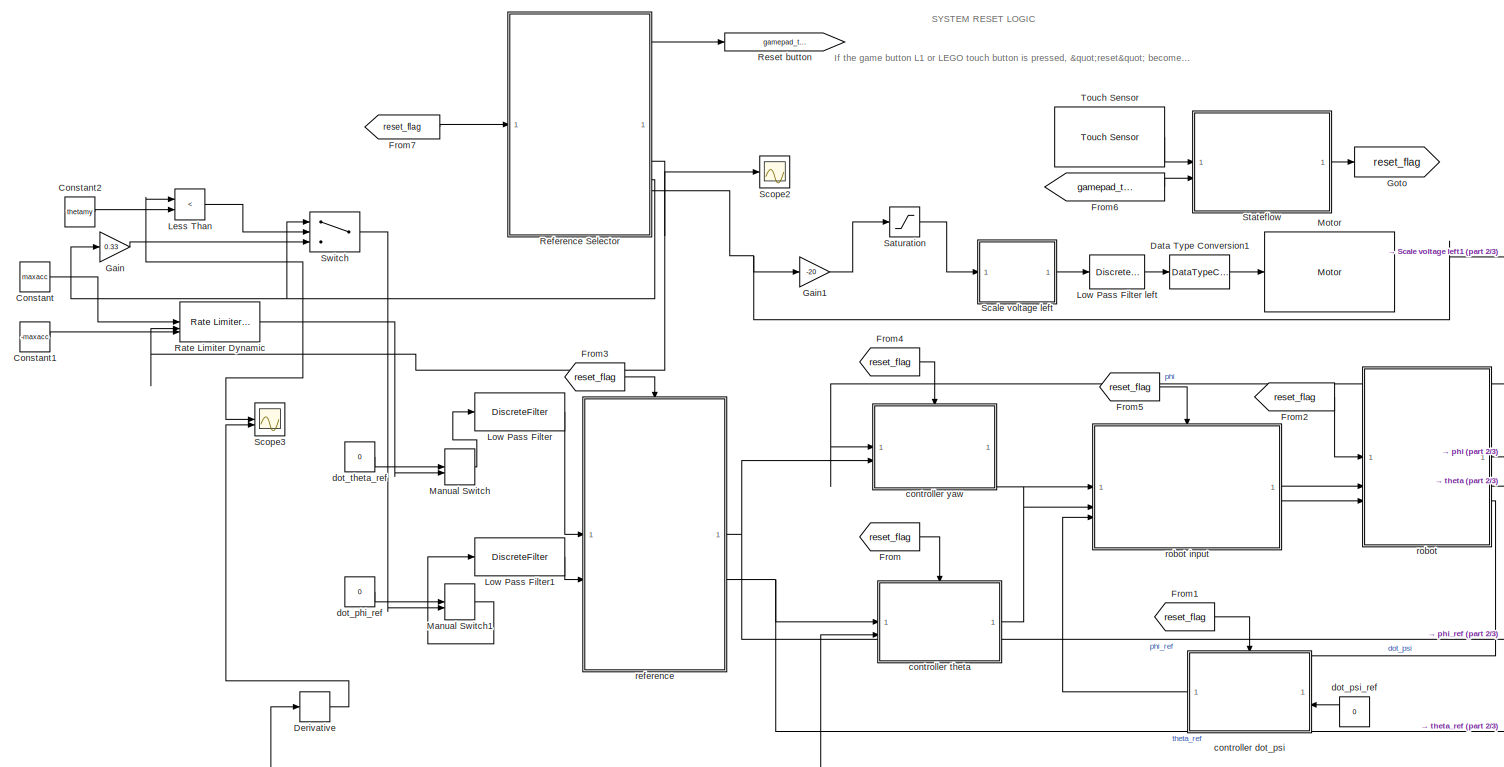
[diagram: root canvas - part 1/3, most of the canvas]
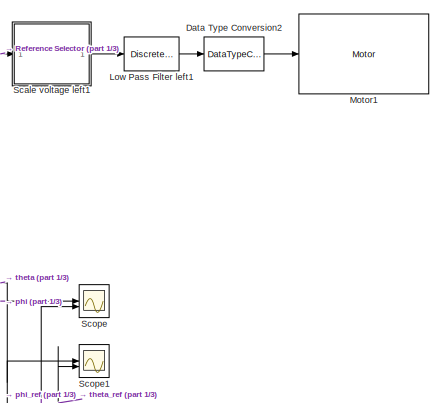
[diagram: root canvas - part 2/3, middle right region]
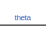
[diagram: root canvas - part 3/3, bottom center region]
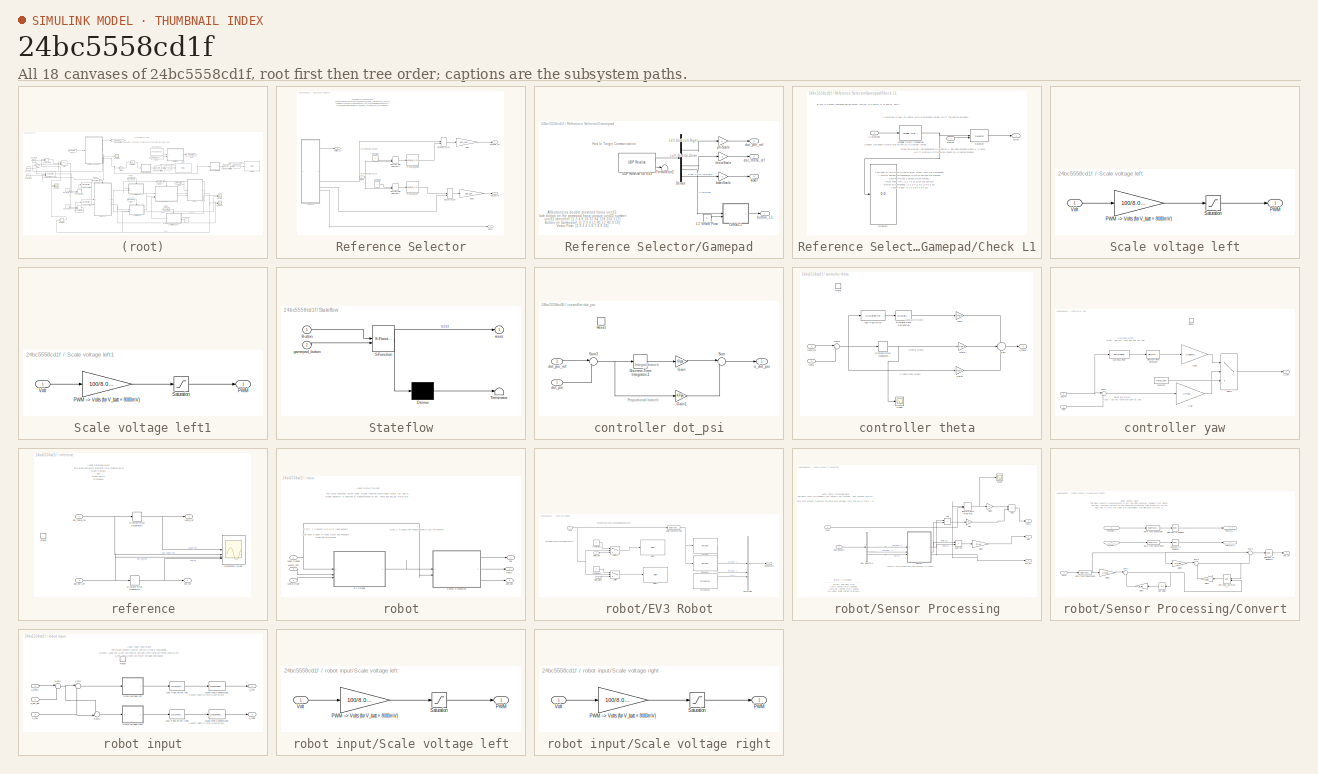
[diagram: thumbnail index - all 18 canvases of the model, root first then tree order]
MODEL slx_24bc5558cd1f
KIND model
CONFIG AbsTol = auto
CONFIG EnableMultiTasking = on
CONFIG FixedStep = auto
CONFIG InitFcn = lego_drive_openloop_InitData.mdl = get_param(bdroot,'Name');\nlego_drive_openloop_InitData.cs = getActiveConfigSet(lego_drive_openloop_InitData.mdl);\n\n
CONFIG MaxStep = auto
CONFIG MinStep = auto
CONFIG RelTol = 1e-3
CONFIG SampleTimeConstraint = Unconstrained
CONFIG SolverName = ode45
CONFIG StartTime = 0.0
CONFIG StopTime = 10.0
BLOCK [Constant] Constant
  Value = maxacc
BLOCK [Constant] Constant1
  Value = -maxacc
BLOCK [Constant] Constant2
  Value = thetamy
BLOCK [DataTypeConversion] Data Type Conversion1
  OutDataTypeStr = int8
  RndMeth = Floor
  SaturateOnIntegerOverflow = off
BLOCK [DataTypeConversion] Data Type Conversion2
  OutDataTypeStr = int8
  RndMeth = Floor
  SaturateOnIntegerOverflow = off
BLOCK [Derivative] Derivative
BLOCK [From] From
  GotoTag = reset_flag
BLOCK [From] From1
  GotoTag = reset_flag
BLOCK [From] From2
  GotoTag = reset_flag
BLOCK [From] From3
  GotoTag = reset_flag
BLOCK [From] From4
  GotoTag = reset_flag
BLOCK [From] From5
  GotoTag = reset_flag
BLOCK [From] From6
  GotoTag = gamepad_touch
  TagVisibility = global
BLOCK [From] From7
  GotoTag = reset_flag
BLOCK [Gain] Gain
  Gain = 0.33
BLOCK [Gain] Gain1
  Gain = -20
BLOCK [Goto] Goto
  GotoTag = reset_flag
BLOCK [RelationalOperator] Less Than
  InputSameDT = off
  Operator = <
  OutDataTypeStr = boolean
  RndMeth = Simplest
BLOCK [DiscreteFilter] Low Pass Filter
  Denominator = [1 -0.8]
  InputPortMap = u0
  Numerator = [.2]
  SampleTime = Ts
BLOCK [DiscreteFilter] Low Pass Filter left
  Denominator = [1 -0.8]
  InputPortMap = u0
  Numerator = [.2]
BLOCK [DiscreteFilter] Low Pass Filter left1
  Denominator = [1 -0.8]
  InputPortMap = u0
  Numerator = [.2]
BLOCK [DiscreteFilter] Low Pass Filter1
  Denominator = [1 -0.8]
  InputPortMap = u0
  Numerator = [.2]
  SampleTime = Ts
BLOCK [ManualSwitch] Manual Switch
  CurrentSetting = 0
BLOCK [ManualSwitch] Manual Switch1
  CurrentSetting = 0
BLOCK [Reference] Motor  REF=legoev3lib/Motor
  SourceBlock = legoev3lib/Motor
  SourceType = LEGO MINDSTORMS EV3 Motor
BLOCK [Reference] Motor1  REF=legoev3lib/Motor
  SourceBlock = legoev3lib/Motor
  SourceType = LEGO MINDSTORMS EV3 Motor
BLOCK [Reference] Rate Limiter Dynamic  REF=simulink/Discontinuities/Rate Limiter
Dynamic
  SourceBlock = simulink/Discontinuities/Rate Limiter\nDynamic
  SourceType = Rate Limiter Dynamic
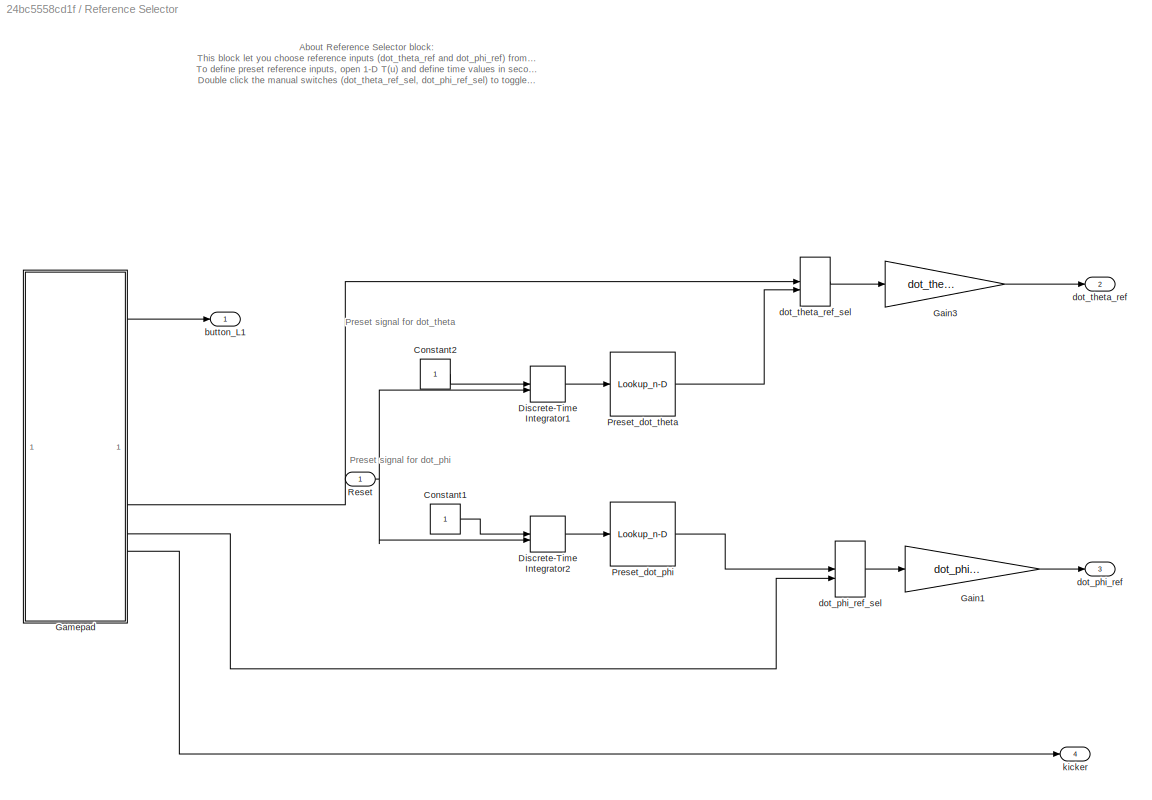
BLOCK [SubSystem] Reference Selector
BLOCK [Constant] Reference Selector/Constant1
BLOCK [Constant] Reference Selector/Constant2
BLOCK [DiscreteIntegrator] Reference Selector/Discrete-Time Integrator1
  ExternalReset = level
  ICPrevOutput = DiscIntNeverNeededParam
  ICPrevScaledInput = DiscIntNeverNeededParam
  NameLocation = top
  SampleTime = Ts
BLOCK [DiscreteIntegrator] Reference Selector/Discrete-Time Integrator2
  ExternalReset = level
  ICPrevOutput = DiscIntNeverNeededParam
  ICPrevScaledInput = DiscIntNeverNeededParam
  NameLocation = top
  SampleTime = Ts
BLOCK [Gain] Reference Selector/Gain1
  Gain = dot_phi_ref
BLOCK [Gain] Reference Selector/Gain3
  Gain = dot_theta_ref
BLOCK [SubSystem] Reference Selector/Gamepad
  Permissions = ReadOnly
BLOCK [SubSystem] Reference Selector/Gamepad/Check L1
BLOCK [Inport] Reference Selector/Gamepad/Check L1/AllButtons 
BLOCK [Inport] Reference Selector/Gamepad/Check L1/Button
  Port = 2
BLOCK [Display] Reference Selector/Gamepad/Check L1/Display1
  Decimation = 1
BLOCK [Reference] Reference Selector/Gamepad/Check L1/Integer to Bit Converter  REF=simulink/Logic and Bit
Operations/Integer to Bit
Converter
  LibrarySourceBlock = commutil2/Integer to Bit\nConverter
  SourceBlock = simulink/Logic and Bit\nOperations/Integer to Bit\nConverter
  SourceType = Integer to Bit Converter
BLOCK [Selector] Reference Selector/Gamepad/Check L1/Selector
  IndexOptions = Index vector (port)
  Indices = [1]
  InputPortWidth = 10
  OutputSizes = 1
BLOCK [Outport] Reference Selector/Gamepad/Check L1/on-off
  VectorParamsAs1DForOutWhenUnconnected = off
BLOCK [Demux] Reference Selector/Gamepad/Demux
BLOCK [Constant] Reference Selector/Gamepad/L1 Vector Posn
  Value = 5
BLOCK [Terminator] Reference Selector/Gamepad/Terminator2
BLOCK [Reference] Reference Selector/Gamepad/UDP Receive for EV3  REF=shared_linuxserviceslib/UDP Receive
  SourceBlock = shared_linuxserviceslib/UDP Receive
  SourceType = UDP Receive
BLOCK [Outport] Reference Selector/Gamepad/button_L1
  VectorParamsAs1DForOutWhenUnconnected = off
BLOCK [Outport] Reference Selector/Gamepad/dot_phi_ref
  Port = 3
  VectorParamsAs1DForOutWhenUnconnected = off
BLOCK [Outport] Reference Selector/Gamepad/dot_theta_ref
  Port = 2
  VectorParamsAs1DForOutWhenUnconnected = off
BLOCK [Outport] Reference Selector/Gamepad/kicker
  Port = 4
  VectorParamsAs1DForOutWhenUnconnected = off
BLOCK [Gain] Reference Selector/Gamepad/kickerScale
  Gain = -1
BLOCK [Gain] Reference Selector/Gamepad/phiScale
BLOCK [Gain] Reference Selector/Gamepad/thetaScale
  Gain = -1
BLOCK [Lookup_n-D] Reference Selector/Preset_dot_phi
  BreakpointsForDimension1 = [0 1 2 3 4 5 6 9.1 10.8 11 12 12.1 12.2 13 14 15 16 17 18 19 20]
  InputPortMap = u0
  InternalRulePriority = Speed
  InterpMethod = Flat
  NumberOfTableDimensions = 1
  RndMeth = Ceiling
  Table = [0;0;0;0;0;0;0;8;0;0;0;0;0;0;0;0;0;0;0;0;0]
BLOCK [Lookup_n-D] Reference Selector/Preset_dot_theta
  BreakpointsForDimension1 = [0;1;2;2.5;2.6;2.7;3.7;4.8;5.9;7;8;9;10;11;11.5;12.4;13;14;15;16;17;18;19;20;21;22]
  InputPortMap = u0
  InternalRulePriority = Speed
  InterpMethod = Cubic spline
  NumberOfTableDimensions = 1
  RndMeth = Ceiling
  Table = [0;0;0;0;0;0;0.5;1.5;2.5;2.7;2.5;1;0;0;0.5;1.3;2;2.3;2.5;2.1;1.5;0.5;0;0;0;0]
BLOCK [Inport] Reference Selector/Reset
BLOCK [Outport] Reference Selector/button_L1
BLOCK [Outport] Reference Selector/dot_phi_ref
  Port = 3
BLOCK [ManualSwitch] Reference Selector/dot_phi_ref_sel
  CurrentSetting = 0
BLOCK [Outport] Reference Selector/dot_theta_ref
  Port = 2
BLOCK [ManualSwitch] Reference Selector/dot_theta_ref_sel
BLOCK [Outport] Reference Selector/kicker
  Port = 4
BLOCK [Goto] Reset button
  GotoTag = gamepad_touch
  TagVisibility = global
BLOCK [Saturate] Saturation
  LowerLimit = -20
  UpperLimit = 2
BLOCK [SubSystem] Scale voltage left
BLOCK [Outport] Scale voltage left/PWM
  VectorParamsAs1DForOutWhenUnconnected = off
BLOCK [Gain] Scale voltage left/PWM --> Volts (for V_batt = 8000mV)
  Gain = 100/8.087
BLOCK [Saturate] Scale voltage left/Saturation
  LowerLimit = -100
  UpperLimit = 100
BLOCK [Inport] Scale voltage left/Volt
BLOCK [SubSystem] Scale voltage left1
BLOCK [Outport] Scale voltage left1/PWM
  VectorParamsAs1DForOutWhenUnconnected = off
BLOCK [Gain] Scale voltage left1/PWM --> Volts (for V_batt = 8000mV)
  Gain = 100/8.087
BLOCK [Saturate] Scale voltage left1/Saturation
  LowerLimit = -100
  UpperLimit = 100
BLOCK [Inport] Scale voltage left1/Volt
BLOCK [Scope] Scope
  Floating = off
  NumInputPorts = 2
  ScopeSpecificationString = Simulink.scopes.TimeScopeBlockCfg('CurrentConfiguration', extmgr.ConfigurationSet(extmgr.Configuration('Core','General UI',true),extmgr.Configuration('Core','Source UI',true),extmgr.Configuration('Sources','WiredSimulink',true,'DataLoggingVariableName','ScopeData1'),extmgr.Configuration('Visuals','Time Domain',true,'SerializedDisplays',{struct('MinYLimReal','-0.13966','MaxYLimReal','2.25203','YLab...<+1427ch>
BLOCK [Scope] Scope1
  Floating = off
  NumInputPorts = 2
  ScopeSpecificationString = Simulink.scopes.TimeScopeBlockCfg('CurrentConfiguration', extmgr.ConfigurationSet(extmgr.Configuration('Core','General UI',true),extmgr.Configuration('Core','Source UI',true),extmgr.Configuration('Sources','WiredSimulink',true,'DataLoggingVariableName','ScopeData2'),extmgr.Configuration('Visuals','Time Domain',true,'SerializedDisplays',{struct('MinYLimReal','-25.1274','MaxYLimReal','144.99862','YL...<+1582ch>
BLOCK [Scope] Scope2
  Floating = off
  NumInputPorts = 1
  ScopeSpecificationString = Simulink.scopes.TimeScopeBlockCfg('CurrentConfiguration', extmgr.ConfigurationSet(extmgr.Configuration('Core','General UI',true),extmgr.Configuration('Core','Source UI',true),extmgr.Configuration('Sources','WiredSimulink',true,'DataLoggingVariableName','ScopeData1'),extmgr.Configuration('Visuals','Time Domain',true,'SerializedDisplays',{struct('MinYLimReal','-1.125','MaxYLimReal','10.125','YLabelR...<+1397ch>
BLOCK [Scope] Scope3
  Floating = off
  NumInputPorts = 2
  ScopeSpecificationString = Simulink.scopes.TimeScopeBlockCfg('CurrentConfiguration', extmgr.ConfigurationSet(extmgr.Configuration('Core','General UI',true),extmgr.Configuration('Core','Source UI',true),extmgr.Configuration('Sources','WiredSimulink',true,'DataLoggingVariableName','ScopeData2'),extmgr.Configuration('Visuals','Time Domain',true,'SerializedDisplays',{struct('MinYLimReal','-0.00001','MaxYLimReal','0.000001','YLa...<+1396ch>
BLOCK [SubSystem] Stateflow
  CopyFcn = % delete the link so that this is editable\nset_param(gcb, 'LinkStatus', 'none');
  ErrorFcn = Stateflow.Translate.translate
  Permissions = ReadOnly
  PermitHierarchicalResolution = ExplicitOnly
  SFBlockType = Chart
  SystemSampleTime = Ts
  TreatAsAtomicUnit = on
BLOCK [Demux] Stateflow/ Demux 
  Outputs = 1
BLOCK [S-Function] Stateflow/ SFunction 
  EnableBusSupport = on
  FunctionName = sf_sfun
  PortCounts = [2 2]
  SFcnIsStateOwnerBlock = off
  SFunctionDeploymentMode = off
  Tag = Stateflow S-Function 1
BLOCK [Terminator] Stateflow/ Terminator 
BLOCK [Inport] Stateflow/Button
BLOCK [Inport] Stateflow/gamepad_button
  Port = 2
BLOCK [Outport] Stateflow/reset
  VectorParamsAs1DForOutWhenUnconnected = off
BLOCK [Switch] Switch
  Criteria = u2 > Threshold
  InputSameDT = off
  SaturateOnIntegerOverflow = off
BLOCK [Reference] Touch Sensor  REF=legoev3lib/Touch Sensor
  SourceBlock = legoev3lib/Touch Sensor
  SourceType = LEGO MINDSTORMS EV3 Touch Sensor
BLOCK [SubSystem] controller dot_psi
BLOCK [DiscreteIntegrator] controller dot_psi/Discrete-Time Integrator-1
  ICPrevOutput = DiscIntNeverNeededParam
  ICPrevScaledInput = DiscIntNeverNeededParam
  NameLocation = top
  SampleTime = Ts
BLOCK [Gain] controller dot_psi/Gain
  Gain = KIpsi
BLOCK [Gain] controller dot_psi/Gain1
  Gain = KPpsi
BLOCK [ResetPort] controller dot_psi/Reset
  DisableCoverage = on
BLOCK [Sum] controller dot_psi/Sum
  Inputs = |++
  OutDataTypeStr = Inherit: Same as first input
BLOCK [Sum] controller dot_psi/Sum3
  Inputs = |+-
  OutDataTypeStr = Inherit: Same as first input
BLOCK [Inport] controller dot_psi/dot_psi
BLOCK [Inport] controller dot_psi/dot_psi_ref
  Port = 2
BLOCK [Outport] controller dot_psi/u_dot_psi
  VectorParamsAs1DForOutWhenUnconnected = off
BLOCK [SubSystem] controller theta
BLOCK [Reference] controller theta/Discrete-Time Derivative  REF=simulink/Discrete/Discrete Derivative
  SourceBlock = simulink/Discrete/Discrete Derivative
  SourceType = Discrete Derivative
BLOCK [DiscreteIntegrator] controller theta/Discrete-Time Integrator
  ICPrevOutput = DiscIntNeverNeededParam
  ICPrevScaledInput = DiscIntNeverNeededParam
  NameLocation = top
  SampleTime = Ts
BLOCK [Gain] controller theta/Gain
  Gain = KDtheta
BLOCK [Gain] controller theta/Gain1
  Gain = KItheta
BLOCK [Gain] controller theta/Gain2
  Gain = KPtheta
BLOCK [DiscreteFilter] controller theta/Low Pass Filter
  Denominator = [1 -0.8]
  InputPortMap = u0
  Numerator = [.2]
  SampleTime = Ts
BLOCK [ResetPort] controller theta/Reset
  DisableCoverage = on
BLOCK [Scope] controller theta/Scope
  Floating = off
  NumInputPorts = 1
  ScopeSpecificationString = Simulink.scopes.TimeScopeBlockCfg('CurrentConfiguration', extmgr.ConfigurationSet(extmgr.Configuration('Core','General UI',true),extmgr.Configuration('Core','Source UI',true),extmgr.Configuration('Sources','WiredSimulink',true,'DataLoggingVariableName','ScopeData3'),extmgr.Configuration('Visuals','Time Domain',true),extmgr.Configuration('Tools','Plot Navigation',true),extmgr.Configuration('Tools',...<+40ch>
BLOCK [Sum] controller theta/Sum
  Inputs = +|+|+
  OutDataTypeStr = Inherit: Same as first input
BLOCK [Sum] controller theta/Sum3
  Inputs = |+-
  OutDataTypeStr = Inherit: Same as first input
BLOCK [Inport] controller theta/theta
  Port = 2
BLOCK [Inport] controller theta/theta_ref
BLOCK [Outport] controller theta/u_theta
  VectorParamsAs1DForOutWhenUnconnected = off
BLOCK [SubSystem] controller yaw
BLOCK [Constant] controller yaw/Constant
  Value = thres_yaw
BLOCK [Reference] controller yaw/Discrete-Time Derivative  REF=simulink/Discrete/Discrete Derivative
  SourceBlock = simulink/Discrete/Discrete Derivative
  SourceType = Discrete Derivative
BLOCK [Gain] controller yaw/Gain
  Gain = KPphi
BLOCK [Gain] controller yaw/Gain1
  Gain = Kopenloop
BLOCK [DiscreteFilter] controller yaw/Low Pass Filter
  Denominator = [1 -0.8]
  InputPortMap = u0
  Numerator = [.2]
  SampleTime = Ts
BLOCK [ResetPort] controller yaw/Reset
  DisableCoverage = on
BLOCK [Sum] controller yaw/Sum3
  Inputs = |+-
BLOCK [Switch] controller yaw/Switch
  Criteria = u2 > Threshold
  InputSameDT = off
  SaturateOnIntegerOverflow = off
BLOCK [Inport] controller yaw/phi
BLOCK [Inport] controller yaw/phi_ref
  Port = 2
BLOCK [Outport] controller yaw/u_yaw
  VectorParamsAs1DForOutWhenUnconnected = off
BLOCK [Constant] dot_phi_ref
  Value = 0
BLOCK [Constant] dot_psi_ref
  Value = 0
  VectorParams1D = off
BLOCK [Constant] dot_theta_ref
  Value = 0
BLOCK [SubSystem] reference
  Permissions = ReadOnly
BLOCK [DiscreteIntegrator] reference/Discrete-Time Integrator1
  ICPrevOutput = DiscIntNeverNeededParam
  ICPrevScaledInput = DiscIntNeverNeededParam
  NameLocation = top
  SampleTime = Ts
BLOCK [DiscreteIntegrator] reference/Discrete-Time Integrator2
  ICPrevOutput = DiscIntNeverNeededParam
  ICPrevScaledInput = DiscIntNeverNeededParam
  NameLocation = top
  SampleTime = Ts
BLOCK [Scope] reference/Reference Values
  Floating = off
  NumInputPorts = 4
  ScopeSpecificationString = Simulink.scopes.TimeScopeBlockCfg('CurrentConfiguration', extmgr.ConfigurationSet(extmgr.Configuration('Core','General UI',true),extmgr.Configuration('Core','Source UI',true),extmgr.Configuration('Sources','WiredSimulink',true,'DataLoggingVariableName','ScopeData1','DataLoggingSaveFormat','StructureWithTime','DataLoggingDecimation','1','DataLoggingLimitDataPoints',true),extmgr.Configuration('Visua...<+3596ch>
BLOCK [ResetPort] reference/Reset
  DisableCoverage = on
BLOCK [Inport] reference/dot_phi_ref
  Port = 2
BLOCK [Inport] reference/dot_theta_ref
BLOCK [Outport] reference/phi_ref  
  VectorParamsAs1DForOutWhenUnconnected = off
BLOCK [Outport] reference/theta_ref
  Port = 2
  VectorParamsAs1DForOutWhenUnconnected = off
BLOCK [SubSystem] robot
  VariantControl = DoSim
BLOCK [SubSystem] robot input
  Permissions = ReadOnly
BLOCK [DataTypeConversion] robot input/Data Type Conversion1
  OutDataTypeStr = int8
  RndMeth = Floor
  SaturateOnIntegerOverflow = off
BLOCK [DataTypeConversion] robot input/Data Type Conversion2
  OutDataTypeStr = int8
  RndMeth = Floor
  SaturateOnIntegerOverflow = off
BLOCK [DiscreteFilter] robot input/Low Pass Filter left
  Denominator = [1 -0.8]
  InputPortMap = u0
  Numerator = [.2]
BLOCK [DiscreteFilter] robot input/Low Pass Filter right
  Denominator = [1 -0.8]
  InputPortMap = u0
  Numerator = [.2]
BLOCK [ResetPort] robot input/Reset
  DisableCoverage = on
BLOCK [SubSystem] robot input/Scale voltage left
BLOCK [Outport] robot input/Scale voltage left/PWM
  VectorParamsAs1DForOutWhenUnconnected = off
BLOCK [Gain] robot input/Scale voltage left/PWM --> Volts (for V_batt = 8000mV)
  Gain = 100/8.087
BLOCK [Saturate] robot input/Scale voltage left/Saturation
  LowerLimit = -100
  UpperLimit = 100
BLOCK [Inport] robot input/Scale voltage left/Volt
BLOCK [SubSystem] robot input/Scale voltage right
BLOCK [Outport] robot input/Scale voltage right/PWM
  VectorParamsAs1DForOutWhenUnconnected = off
BLOCK [Gain] robot input/Scale voltage right/PWM --> Volts (for V_batt = 8000mV)
  Gain = 100/8.087
BLOCK [Saturate] robot input/Scale voltage right/Saturation
  LowerLimit = -100
  UpperLimit = 100
BLOCK [Inport] robot input/Scale voltage right/Volt
BLOCK [Sum] robot input/Sum1
  Inputs = |++
BLOCK [Sum] robot input/Sum2
  Inputs = +-|
BLOCK [Sum] robot input/Sum4
  Inputs = |++
BLOCK [Inport] robot input/u_dot_psi
  Port = 3
BLOCK [Outport] robot input/u_left
  VectorParamsAs1DForOutWhenUnconnected = off
BLOCK [Outport] robot input/u_right
  Port = 2
  VectorParamsAs1DForOutWhenUnconnected = off
BLOCK [Inport] robot input/u_theta
  Port = 2
BLOCK [Inport] robot input/u_yaw
BLOCK [SubSystem] robot/EV3 Robot
BLOCK [BusCreator] robot/EV3 Robot/Bus Creator
  DisplayOption = bar
  InheritFromInputs = on
  Inputs = 3
BLOCK [DataTypeConversion] robot/EV3 Robot/Data Type Conversion
  OutDataTypeStr = int8
  RndMeth = Floor
  SaturateOnIntegerOverflow = off
BLOCK [Reference] robot/EV3 Robot/Encoder  REF=legoev3lib/Encoder
  SourceBlock = legoev3lib/Encoder
  SourceType = LEGO MINDSTORMS EV3 Encoder
BLOCK [Reference] robot/EV3 Robot/Encoder1  REF=legoev3lib/Encoder
  SourceBlock = legoev3lib/Encoder
  SourceType = LEGO MINDSTORMS EV3 Encoder
BLOCK [Reference] robot/EV3 Robot/Gyro Sensor  REF=legoev3lib/Gyro Sensor
  SourceBlock = legoev3lib/Gyro Sensor
  SourceType = LEGO MINDSTORMS EV3 Gyro Sensor
BLOCK [Reference] robot/EV3 Robot/Motor  REF=legoev3lib/Motor
  SourceBlock = legoev3lib/Motor
  SourceType = LEGO MINDSTORMS EV3 Motor
BLOCK [Inport] robot/EV3 Robot/Motor Left
  Port = 2
BLOCK [Inport] robot/EV3 Robot/Motor Right
  Port = 3
BLOCK [Reference] robot/EV3 Robot/Motor1  REF=legoev3lib/Motor
  SourceBlock = legoev3lib/Motor
  SourceType = LEGO MINDSTORMS EV3 Motor
BLOCK [Outport] robot/EV3 Robot/Raw Sensors
  VectorParamsAs1DForOutWhenUnconnected = off
BLOCK [Switch] robot/EV3 Robot/Switch
  Criteria = u2 ~= 0
  InputSameDT = off
  SaturateOnIntegerOverflow = off
BLOCK [Switch] robot/EV3 Robot/Switch1
  Criteria = u2 ~= 0
  InputSameDT = off
  SaturateOnIntegerOverflow = off
  Threshold = 1
BLOCK [Inport] robot/EV3 Robot/reset
BLOCK [Constant] robot/EV3 Robot/reset value
  Value = 0
BLOCK [Constant] robot/EV3 Robot/reset value1
  Value = 0
BLOCK [Inport] robot/Motor_left
  Port = 2
BLOCK [Inport] robot/Motor_right
  Port = 3
BLOCK [SubSystem] robot/Sensor Processing
  TreatAsAtomicUnit = on
BLOCK [Sum] robot/Sensor Processing/Add
  IconShape = rectangular
BLOCK [Sum] robot/Sensor Processing/Add1
  IconShape = rectangular
BLOCK [BusSelector] robot/Sensor Processing/Bus Selector1
  OutputSignals = encoder_l,encoder_r,gyro
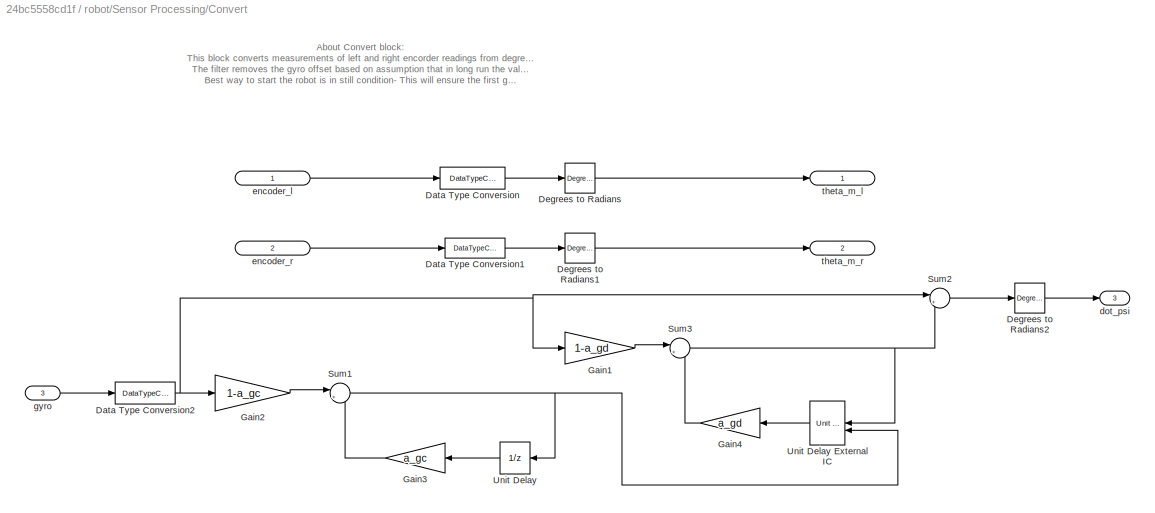
BLOCK [SubSystem] robot/Sensor Processing/Convert
  Permissions = ReadOnly
BLOCK [DataTypeConversion] robot/Sensor Processing/Convert/Data Type Conversion
  RndMeth = Floor
  SaturateOnIntegerOverflow = off
BLOCK [DataTypeConversion] robot/Sensor Processing/Convert/Data Type Conversion1
  RndMeth = Floor
  SaturateOnIntegerOverflow = off
BLOCK [DataTypeConversion] robot/Sensor Processing/Convert/Data Type Conversion2
  RndMeth = Floor
  SaturateOnIntegerOverflow = off
BLOCK [Reference] robot/Sensor Processing/Convert/Degrees to Radians  REF=simulink_extras/Transformations/Degrees to
Radians
  SourceBlock = simulink_extras/Transformations/Degrees to\nRadians
  SourceType = DegreesToRadians
BLOCK [Reference] robot/Sensor Processing/Convert/Degrees to Radians1  REF=simulink_extras/Transformations/Degrees to
Radians
  SourceBlock = simulink_extras/Transformations/Degrees to\nRadians
  SourceType = DegreesToRadians
BLOCK [Reference] robot/Sensor Processing/Convert/Degrees to Radians2  REF=simulink_extras/Transformations/Degrees to
Radians
  SourceBlock = simulink_extras/Transformations/Degrees to\nRadians
  SourceType = DegreesToRadians
BLOCK [Gain] robot/Sensor Processing/Convert/Gain1
  Gain = 1-a_gd
  OutDataTypeStr = Inherit: Same as input
  ParamDataTypeStr = Inherit: Same as input
BLOCK [Gain] robot/Sensor Processing/Convert/Gain2
  Gain = 1-a_gc
  OutDataTypeStr = Inherit: Same as input
  ParamDataTypeStr = Inherit: Same as input
BLOCK [Gain] robot/Sensor Processing/Convert/Gain3
  Gain = a_gc
  OutDataTypeStr = Inherit: Same as input
  ParamDataTypeStr = Inherit: Same as input
BLOCK [Gain] robot/Sensor Processing/Convert/Gain4
  Gain = a_gd
  OutDataTypeStr = Inherit: Same as input
  ParamDataTypeStr = Inherit: Same as input
BLOCK [Sum] robot/Sensor Processing/Convert/Sum1
  Inputs = |++
  OutDataTypeStr = Inherit: Same as first input
BLOCK [Sum] robot/Sensor Processing/Convert/Sum2
  Inputs = |+-
  OutDataTypeStr = Inherit: Same as first input
BLOCK [Sum] robot/Sensor Processing/Convert/Sum3
  Inputs = |++
  OutDataTypeStr = Inherit: Same as first input
BLOCK [UnitDelay] robot/Sensor Processing/Convert/Unit Delay
  HasFrameUpgradeWarning = on
  SampleTime = -1
BLOCK [Reference] robot/Sensor Processing/Convert/Unit Delay External IC  REF=simulink_need_slupdate/Unit Delay
External IC
  SourceBlock = simulink_need_slupdate/Unit Delay\nExternal IC
  SourceType = Unit Delay External Initial Condition
BLOCK [Outport] robot/Sensor Processing/Convert/dot_psi
  Port = 3
  VectorParamsAs1DForOutWhenUnconnected = off
BLOCK [Inport] robot/Sensor Processing/Convert/encoder_l
BLOCK [Inport] robot/Sensor Processing/Convert/encoder_r
  Port = 2
BLOCK [Inport] robot/Sensor Processing/Convert/gyro
  Port = 3
BLOCK [Outport] robot/Sensor Processing/Convert/theta_m_l
  VectorParamsAs1DForOutWhenUnconnected = off
BLOCK [Outport] robot/Sensor Processing/Convert/theta_m_r
  Port = 2
  VectorParamsAs1DForOutWhenUnconnected = off
BLOCK [DiscreteIntegrator] robot/Sensor Processing/Discrete-Time Integrator
  ExternalReset = rising
  ICPrevOutput = DiscIntNeverNeededParam
  ICPrevScaledInput = DiscIntNeverNeededParam
  NameLocation = top
  SampleTime = Ts
BLOCK [Gain] robot/Sensor Processing/Gain
  Gain = 0.5
BLOCK [Gain] robot/Sensor Processing/Gain1
  Gain = R/W
BLOCK [Gain] robot/Sensor Processing/Gain2
BLOCK [Inport] robot/Sensor Processing/Raw Sensors
BLOCK [Scope] robot/Sensor Processing/Scope
  Floating = off
  NumInputPorts = 1
  ScopeSpecificationString = Simulink.scopes.TimeScopeBlockCfg('CurrentConfiguration', extmgr.ConfigurationSet(extmgr.Configuration('Core','General UI',true),extmgr.Configuration('Core','Source UI',true),extmgr.Configuration('Sources','WiredSimulink',true,'DataLoggingVariableName','ScopeData4'),extmgr.Configuration('Visuals','Time Domain',true,'SerializedDisplays',{struct('MinYLimReal','-0.000004','MaxYLimReal','0.000038','YL...<+1392ch>
BLOCK [Sum] robot/Sensor Processing/Subtract
  IconShape = rectangular
  Inputs = +-
BLOCK [Outport] robot/Sensor Processing/dot_psi
  Port = 3
  VectorParamsAs1DForOutWhenUnconnected = off
BLOCK [Outport] robot/Sensor Processing/phi
  VectorParamsAs1DForOutWhenUnconnected = off
BLOCK [Inport] robot/Sensor Processing/reset
  Port = 2
BLOCK [Outport] robot/Sensor Processing/theta
  Port = 2
  VectorParamsAs1DForOutWhenUnconnected = off
BLOCK [Outport] robot/dot_psi
  Port = 3
  VectorParamsAs1DForOutWhenUnconnected = off
BLOCK [Outport] robot/phi
  VectorParamsAs1DForOutWhenUnconnected = off
BLOCK [Inport] robot/reset trigger
BLOCK [Outport] robot/theta
  Port = 2
  VectorParamsAs1DForOutWhenUnconnected = off
ANNOTATION (root): SYSTEM RESET LOGIC
ANNOTATION (root): If the game button L1 or LEGO touch button is pressed, "reset" becomes 1, which causes the controllers block to reset (integrals to zero), motors to stop and encoders to be reset.
ANNOTATION Reference Selector: About Reference Selector block: This block let you choose reference inputs (dot_theta_ref and dot_phi_ref) from Gamepad block or preset signals defined in 1-D T(u) lookup tabl block. The block also produces output for kicker [+1 or -1] To define preset reference inputs, open 1-D T(u) and define time values in seconds as an array in Breakpoints 1 field and signal values in Table data field. Double ...<+90ch>
ANNOTATION Reference Selector: Preset signal for dot_phi
ANNOTATION Reference Selector: Preset signal for dot_theta
ANNOTATION Reference Selector/Gamepad: Host to Target Communication
ANNOTATION Reference Selector/Gamepad: Allbuttons is a double converted from a unit32 : Each button on the gamepad has a unique uint32 number: uint32 Identifier: [1 2 4 8 16 32 64 128 256 512] Button on Gampepad: [1 2 3 4 L1 R1 L2 R2 9 10] Vector Posn: [1 2 3 4 5 6 7 8 9 10]
ANNOTATION Reference Selector/Gamepad: Left Stick Left-Right
ANNOTATION Reference Selector/Gamepad: Left Stick Up-Down
ANNOTATION Reference Selector/Gamepad/Check L1: The input of this block is the original output from the Gampepad: A unint32 number corresponding to which buttons are pressed: Each button has a unique uint32 number: uint32 Identifier: [1 2 4 8 16 32 64 128 256 512] Button on Gampepad: [1 2 3 4 L1 R1 L2 R2 9 10] Vector Posn: [1 2 3 4 5 6 7 8 9 10]
ANNOTATION Reference Selector/Gamepad/Check L1: AllButtons is now 1D vector with 10 elements (binary 0/1 if the button has been pressed)
ANNOTATION Reference Selector/Gamepad/Check L1: Convert the double (which was an unit32) to a binary output
ANNOTATION Reference Selector/Gamepad/Check L1: Block to Convert gamepad button output (unit32) to a vector of 1s and 0s, and checks for single button being pressed
ANNOTATION Reference Selector/Gamepad/Check L1: Grab the element, corresponding to if button X has been pressed where X is external input 2. e.g. if Button is 5 this block checks for L1 being pressed
ANNOTATION controller dot_psi: Integral branch
ANNOTATION controller dot_psi: Proportional branch
ANNOTATION controller theta: Derivative branch
ANNOTATION controller theta: Integral branch
ANNOTATION controller theta: Proportional branch
ANNOTATION controller yaw: Closed loop branch TODO: Add your closed loop gain for yaw
ANNOTATION controller yaw: Open loop branch TODO: Add your Open loop gain for yaw
ANNOTATION reference: About reference block: This block performs discrete time integration of $\dot{\theta}$ and $\dot{\phi}$ to produce $\theta$ and $\phi$ $\dot{\theta}$ is angular velocity of wheels $\dot{\phi}$ is angluar velocity of yaw motion $\theta$ is angular position of wheels $\phi$ is angular position of yaw
ANNOTATION robot: About ROBOT Block: This block represent actual robot. Robot receives three inputs motor left and motor right for motor inputs and reset trigger for resetting the robot actuators and sensors. Robot behavior is captured by measurements of phi, theta and dot_psi which are treated as output.
ANNOTATION robot: STEP 1: Connect to EV3 & read sensors Use reset trigger to reset motor and encoders when button pressed
ANNOTATION robot: Step 2: Process the measurements from the sensors
ANNOTATION robot input: About robot input block: This block converts control action to motor commands u_theta, u_dot_psi,u_yaw are control actions from three different controllers. u_left and u_right are motor voltage commands
ANNOTATION robot input: Convert back to int8 to use on ev3
ANNOTATION robot/EV3 Robot: Reset encoders to zero when this signal non zero
ANNOTATION robot/EV3 Robot: Reset motors to zero when this is non zero.
ANNOTATION robot/Sensor Processing: About Sensor Processing block: This block takes the readings from sensors (left encoder, right encoder and gyro) and calculates theta, phi and dot_psi. Note that encoder measures the difference between theta and psi i.e (theta - psi) so you need to add psi to encoder measurements to get correct estimate of theta.
ANNOTATION robot/Sensor Processing: Converts all to double and then degrees to radians
ANNOTATION robot/Sensor Processing: States = 5 variables: ------------------------------------ - phi (left and right turn) - theta (wheels rotary position) - theta_dot (wheels rotary speed) - psi (Robot angle relative to gravity) - psi_dot
ANNOTATION robot/Sensor Processing/Convert: About Convert block: This block converts measurements of left and right encorder readings from degrees to radians. And performs filtering on gyro measruements. The filter removes the gyro offset based on assumption that in long run the value of gyro measurements will be zero. Best way to start the robot is in still condition- This will ensure the first guess of offset is correct to actual offset.
LINE Constant1:1 -> Rate Limiter Dynamic:3
LINE Constant2:1 -> Less Than:2
LINE Constant:1 -> Rate Limiter Dynamic:1
LINE Data Type Conversion1:1 -> Motor:1
LINE Data Type Conversion2:1 -> Motor1:1
LINE Derivative:1 -> Scope3:2
LINE From1:1 -> controller dot_psi:Reset
LINE From2:1 -> robot:1
LINE From3:1 -> reference:Reset
LINE From4:1 -> controller yaw:Reset
LINE From5:1 -> robot input:Reset
LINE From6:1 -> Stateflow:2
LINE From7:1 -> Reference Selector:1
LINE From:1 -> controller theta:Reset
LINE Gain1:1 -> Saturation:1
LINE Gain:1 -> Switch:3
LINE Less Than:1 -> Switch:2
LINE Low Pass Filter left1:1 -> Data Type Conversion2:1
LINE Low Pass Filter left:1 -> Data Type Conversion1:1
LINE Low Pass Filter1:1 -> reference:2
LINE Low Pass Filter:1 -> reference:1
LINE Manual Switch1:1 -> Low Pass Filter1:1
LINE Manual Switch:1 -> Low Pass Filter:1
NET Rate Limiter Dynamic:1 -> Less Than:1, Manual Switch:2, Scope3:1
LINE Reference Selector/Constant1:1 -> Reference Selector/Discrete-Time Integrator2:1
LINE Reference Selector/Constant2:1 -> Reference Selector/Discrete-Time Integrator1:1
LINE Reference Selector/Discrete-Time Integrator1:1 -> Reference Selector/Preset_dot_theta:1
LINE Reference Selector/Discrete-Time Integrator2:1 -> Reference Selector/Preset_dot_phi:1
LINE Reference Selector/Gain1:1 -> Reference Selector/dot_phi_ref:1
LINE Reference Selector/Gain3:1 -> Reference Selector/dot_theta_ref:1
LINE Reference Selector/Gamepad/Check L1/AllButtons :1 -> Reference Selector/Gamepad/Check L1/Integer to Bit Converter:1
LINE Reference Selector/Gamepad/Check L1/Button:1 -> Reference Selector/Gamepad/Check L1/Selector:2
NET Reference Selector/Gamepad/Check L1/Integer to Bit Converter:1 -> Reference Selector/Gamepad/Check L1/Display1:1, Reference Selector/Gamepad/Check L1/Selector:1
LINE Reference Selector/Gamepad/Check L1/Selector:1 -> Reference Selector/Gamepad/Check L1/on-off:1
LINE Reference Selector/Gamepad/Check L1:1 -> Reference Selector/Gamepad/button_L1:1
LINE Reference Selector/Gamepad/Demux:1 -> Reference Selector/Gamepad/phiScale:1
LINE Reference Selector/Gamepad/Demux:2 -> Reference Selector/Gamepad/thetaScale:1
LINE Reference Selector/Gamepad/Demux:3 -> Reference Selector/Gamepad/Check L1:1
LINE Reference Selector/Gamepad/Demux:4 -> Reference Selector/Gamepad/kickerScale:1
LINE Reference Selector/Gamepad/L1 Vector Posn:1 -> Reference Selector/Gamepad/Check L1:2
LINE Reference Selector/Gamepad/UDP Receive for EV3:1 -> Reference Selector/Gamepad/Demux:1
LINE Reference Selector/Gamepad/UDP Receive for EV3:2 -> Reference Selector/Gamepad/Terminator2:1
LINE Reference Selector/Gamepad/kickerScale:1 -> Reference Selector/Gamepad/kicker:1
LINE Reference Selector/Gamepad/phiScale:1 -> Reference Selector/Gamepad/dot_phi_ref:1
LINE Reference Selector/Gamepad/thetaScale:1 -> Reference Selector/Gamepad/dot_theta_ref:1
LINE Reference Selector/Gamepad:1 -> Reference Selector/button_L1:1
LINE Reference Selector/Gamepad:2 -> Reference Selector/dot_theta_ref_sel:1
LINE Reference Selector/Gamepad:3 -> Reference Selector/dot_phi_ref_sel:2
LINE Reference Selector/Gamepad:4 -> Reference Selector/kicker:1
LINE Reference Selector/Preset_dot_phi:1 -> Reference Selector/dot_phi_ref_sel:1
LINE Reference Selector/Preset_dot_theta:1 -> Reference Selector/dot_theta_ref_sel:2
NET Reference Selector/Reset:1 -> Reference Selector/Discrete-Time Integrator1:2, Reference Selector/Discrete-Time Integrator2:2
LINE Reference Selector/dot_phi_ref_sel:1 -> Reference Selector/Gain1:1
LINE Reference Selector/dot_theta_ref_sel:1 -> Reference Selector/Gain3:1
LINE Reference Selector:1 -> Reset button:1
NET Reference Selector:2 -> Rate Limiter Dynamic:2, Scope2:1
NET Reference Selector:3 -> Gain:1, Switch:1
NET Reference Selector:4 -> Gain1:1, Scale voltage left1:1
LINE Saturation:1 -> Scale voltage left:1
LINE Scale voltage left/PWM --> Volts (for V_batt = 8000mV):1 -> Scale voltage left/Saturation:1
LINE Scale voltage left/Saturation:1 -> Scale voltage left/PWM:1
LINE Scale voltage left/Volt:1 -> Scale voltage left/PWM --> Volts (for V_batt = 8000mV):1
LINE Scale voltage left1/PWM --> Volts (for V_batt = 8000mV):1 -> Scale voltage left1/Saturation:1
LINE Scale voltage left1/Saturation:1 -> Scale voltage left1/PWM:1
LINE Scale voltage left1/Volt:1 -> Scale voltage left1/PWM --> Volts (for V_batt = 8000mV):1
LINE Scale voltage left1:1 -> Low Pass Filter left1:1
LINE Scale voltage left:1 -> Low Pass Filter left:1
LINE Stateflow:1 -> Goto:1
LINE Switch:1 -> Manual Switch1:2
LINE Touch Sensor:1 -> Stateflow:1
LINE controller dot_psi/Discrete-Time Integrator-1:1 -> controller dot_psi/Gain:1
LINE controller dot_psi/Gain1:1 -> controller dot_psi/Sum:2
LINE controller dot_psi/Gain:1 -> controller dot_psi/Sum:1
NET controller dot_psi/Sum3:1 -> controller dot_psi/Discrete-Time Integrator-1:1, controller dot_psi/Gain1:1
LINE controller dot_psi/Sum:1 -> controller dot_psi/u_dot_psi:1
LINE controller dot_psi/dot_psi:1 -> controller dot_psi/Sum3:2
LINE controller dot_psi/dot_psi_ref:1 -> controller dot_psi/Sum3:1
LINE controller dot_psi:1 -> robot input:3
LINE controller theta/Discrete-Time Derivative:1 -> controller theta/Gain:1
NET controller theta/Discrete-Time Integrator:1 -> controller theta/Gain1:1, controller theta/Scope:1
LINE controller theta/Gain1:1 -> controller theta/Sum:2
LINE controller theta/Gain2:1 -> controller theta/Sum:3
LINE controller theta/Gain:1 -> controller theta/Sum:1
LINE controller theta/Low Pass Filter:1 -> controller theta/Discrete-Time Derivative:1
NET controller theta/Sum3:1 -> controller theta/Discrete-Time Integrator:1, controller theta/Gain2:1, controller theta/Low Pass Filter:1
LINE controller theta/Sum:1 -> controller theta/u_theta:1
LINE controller theta/theta:1 -> controller theta/Sum3:2
LINE controller theta/theta_ref:1 -> controller theta/Sum3:1
LINE controller theta:1 -> robot input:2
LINE controller yaw/Constant:1 -> controller yaw/Switch:2
LINE controller yaw/Discrete-Time Derivative:1 -> controller yaw/Gain1:1
LINE controller yaw/Gain1:1 -> controller yaw/Switch:1
LINE controller yaw/Gain:1 -> controller yaw/Switch:3
LINE controller yaw/Low Pass Filter:1 -> controller yaw/Discrete-Time Derivative:1
LINE controller yaw/Sum3:1 -> controller yaw/Gain:1
LINE controller yaw/Switch:1 -> controller yaw/u_yaw:1
LINE controller yaw/phi:1 -> controller yaw/Sum3:2
NET controller yaw/phi_ref:1 -> controller yaw/Low Pass Filter:1, controller yaw/Sum3:1
LINE controller yaw:1 -> robot input:1
LINE dot_phi_ref:1 -> Manual Switch1:1
LINE dot_psi_ref:1 -> controller dot_psi:2
LINE dot_theta_ref:1 -> Manual Switch:1
NET reference/Discrete-Time Integrator1:1 -> reference/Reference Values:1, reference/theta_ref:1
NET reference/Discrete-Time Integrator2:1 -> reference/Reference Values:4, reference/phi_ref  :1
NET reference/dot_phi_ref:1 -> reference/Discrete-Time Integrator2:1, reference/Reference Values:3
NET reference/dot_theta_ref:1 -> reference/Discrete-Time Integrator1:1, reference/Reference Values:2
NET reference:1 -> Scope:2, controller yaw:2
NET reference:2 -> Scope1:2, controller theta:1
LINE robot input/Data Type Conversion1:1 -> robot input/u_left:1
LINE robot input/Data Type Conversion2:1 -> robot input/u_right:1
LINE robot input/Low Pass Filter left:1 -> robot input/Data Type Conversion1:1
LINE robot input/Low Pass Filter right:1 -> robot input/Data Type Conversion2:1
LINE robot input/Scale voltage left/PWM --> Volts (for V_batt = 8000mV):1 -> robot input/Scale voltage left/Saturation:1
LINE robot input/Scale voltage left/Saturation:1 -> robot input/Scale voltage left/PWM:1
LINE robot input/Scale voltage left/Volt:1 -> robot input/Scale voltage left/PWM --> Volts (for V_batt = 8000mV):1
LINE robot input/Scale voltage left:1 -> robot input/Low Pass Filter left:1
LINE robot input/Scale voltage right/PWM --> Volts (for V_batt = 8000mV):1 -> robot input/Scale voltage right/Saturation:1
LINE robot input/Scale voltage right/Saturation:1 -> robot input/Scale voltage right/PWM:1
LINE robot input/Scale voltage right/Volt:1 -> robot input/Scale voltage right/PWM --> Volts (for V_batt = 8000mV):1
LINE robot input/Scale voltage right:1 -> robot input/Low Pass Filter right:1
LINE robot input/Sum1:1 -> robot input/Scale voltage left:1
LINE robot input/Sum2:1 -> robot input/Scale voltage right:1
NET robot input/Sum4:1 -> robot input/Sum1:1, robot input/Sum2:1
LINE robot input/u_dot_psi:1 -> robot input/Sum4:2
LINE robot input/u_theta:1 -> robot input/Sum4:1
NET robot input/u_yaw:1 -> robot input/Sum1:2, robot input/Sum2:2
LINE robot input:1 -> robot:2
LINE robot input:2 -> robot:3
LINE robot/EV3 Robot/Bus Creator:1 -> robot/EV3 Robot/Raw Sensors:1
NET robot/EV3 Robot/Data Type Conversion:1 -> robot/EV3 Robot/Encoder1:1, robot/EV3 Robot/Encoder:1
LINE robot/EV3 Robot/Encoder1:1 -> robot/EV3 Robot/Bus Creator:2
LINE robot/EV3 Robot/Encoder:1 -> robot/EV3 Robot/Bus Creator:1
LINE robot/EV3 Robot/Gyro Sensor:1 -> robot/EV3 Robot/Bus Creator:3
LINE robot/EV3 Robot/Motor Left:1 -> robot/EV3 Robot/Switch1:3
LINE robot/EV3 Robot/Motor Right:1 -> robot/EV3 Robot/Switch:3
LINE robot/EV3 Robot/Switch1:1 -> robot/EV3 Robot/Motor:1
LINE robot/EV3 Robot/Switch:1 -> robot/EV3 Robot/Motor1:1
LINE robot/EV3 Robot/reset value1:1 -> robot/EV3 Robot/Switch:1
LINE robot/EV3 Robot/reset value:1 -> robot/EV3 Robot/Switch1:1
NET robot/EV3 Robot/reset:1 -> robot/EV3 Robot/Data Type Conversion:1, robot/EV3 Robot/Switch1:2, robot/EV3 Robot/Switch:2
LINE robot/EV3 Robot:1 -> robot/Sensor Processing:1
LINE robot/Motor_left:1 -> robot/EV3 Robot:2
LINE robot/Motor_right:1 -> robot/EV3 Robot:3
LINE robot/Sensor Processing/Add1:1 -> robot/Sensor Processing/theta:1
LINE robot/Sensor Processing/Add:1 -> robot/Sensor Processing/Gain:1
LINE robot/Sensor Processing/Bus Selector1:1 -> robot/Sensor Processing/Convert:1
LINE robot/Sensor Processing/Bus Selector1:2 -> robot/Sensor Processing/Convert:2
LINE robot/Sensor Processing/Bus Selector1:3 -> robot/Sensor Processing/Convert:3
LINE robot/Sensor Processing/Convert/Data Type Conversion1:1 -> robot/Sensor Processing/Convert/Degrees to Radians1:1
NET robot/Sensor Processing/Convert/Data Type Conversion2:1 -> robot/Sensor Processing/Convert/Gain1:1, robot/Sensor Processing/Convert/Gain2:1, robot/Sensor Processing/Convert/Sum2:1
LINE robot/Sensor Processing/Convert/Data Type Conversion:1 -> robot/Sensor Processing/Convert/Degrees to Radians:1
LINE robot/Sensor Processing/Convert/Degrees to Radians1:1 -> robot/Sensor Processing/Convert/theta_m_r:1
LINE robot/Sensor Processing/Convert/Degrees to Radians2:1 -> robot/Sensor Processing/Convert/dot_psi:1
LINE robot/Sensor Processing/Convert/Degrees to Radians:1 -> robot/Sensor Processing/Convert/theta_m_l:1
LINE robot/Sensor Processing/Convert/Gain1:1 -> robot/Sensor Processing/Convert/Sum3:1
LINE robot/Sensor Processing/Convert/Gain2:1 -> robot/Sensor Processing/Convert/Sum1:1
LINE robot/Sensor Processing/Convert/Gain3:1 -> robot/Sensor Processing/Convert/Sum1:2
LINE robot/Sensor Processing/Convert/Gain4:1 -> robot/Sensor Processing/Convert/Sum3:2
NET robot/Sensor Processing/Convert/Sum1:1 -> robot/Sensor Processing/Convert/Unit Delay External IC:2, robot/Sensor Processing/Convert/Unit Delay:1
LINE robot/Sensor Processing/Convert/Sum2:1 -> robot/Sensor Processing/Convert/Degrees to Radians2:1
NET robot/Sensor Processing/Convert/Sum3:1 -> robot/Sensor Processing/Convert/Sum2:2, robot/Sensor Processing/Convert/Unit Delay External IC:1
LINE robot/Sensor Processing/Convert/Unit Delay External IC:1 -> robot/Sensor Processing/Convert/Gain4:1
LINE robot/Sensor Processing/Convert/Unit Delay:1 -> robot/Sensor Processing/Convert/Gain3:1
LINE robot/Sensor Processing/Convert/encoder_l:1 -> robot/Sensor Processing/Convert/Data Type Conversion:1
LINE robot/Sensor Processing/Convert/encoder_r:1 -> robot/Sensor Processing/Convert/Data Type Conversion1:1
LINE robot/Sensor Processing/Convert/gyro:1 -> robot/Sensor Processing/Convert/Data Type Conversion2:1
NET robot/Sensor Processing/Convert:1 -> robot/Sensor Processing/Add:1, robot/Sensor Processing/Subtract:2
NET robot/Sensor Processing/Convert:2 -> robot/Sensor Processing/Add:2, robot/Sensor Processing/Subtract:1
NET robot/Sensor Processing/Convert:3 -> robot/Sensor Processing/Discrete-Time Integrator:1, robot/Sensor Processing/dot_psi:1
NET robot/Sensor Processing/Discrete-Time Integrator:1 -> robot/Sensor Processing/Gain2:1, robot/Sensor Processing/Scope:1
LINE robot/Sensor Processing/Gain1:1 -> robot/Sensor Processing/phi:1
LINE robot/Sensor Processing/Gain2:1 -> robot/Sensor Processing/Add1:1
LINE robot/Sensor Processing/Gain:1 -> robot/Sensor Processing/Add1:2
LINE robot/Sensor Processing/Raw Sensors:1 -> robot/Sensor Processing/Bus Selector1:1
LINE robot/Sensor Processing/Subtract:1 -> robot/Sensor Processing/Gain1:1
LINE robot/Sensor Processing/reset:1 -> robot/Sensor Processing/Discrete-Time Integrator:2
LINE robot/Sensor Processing:1 -> robot/phi:1
LINE robot/Sensor Processing:2 -> robot/theta:1
LINE robot/Sensor Processing:3 -> robot/dot_psi:1
NET robot/reset trigger:1 -> robot/EV3 Robot:1, robot/Sensor Processing:2
NET robot:1 -> Scope:1, controller yaw:1
NET robot:2 -> Derivative:1, Scope1:1, controller theta:2
LINE robot:3 -> controller dot_psi:1
note: NET lines group one-source signal fan-out (src -> all destinations, sorted); 1:1 wires keep LINE
CHART Stateflow states=13 transitions=8
  STATE_LABEL 'STARTUP_RESET\nentry: reset=1;\n'
  STATE_LABEL '<!DOCTYPE HTML PUBLIC "-//W3C//DTD HTML 4.0//EN" "http://www.w3.org/TR/REC-html40/strict.dtd">\n<html><head><meta name="qrichtext" content="1" /><style type="text/css">\np, li { white-space: pre-wrap; }\n</style></head><body align="left" style=" font-family:\'Helvetica\'; font-size:12px; font-weight:400; font-style:normal;">\n<p align="center" style=" margin-top:0px; margin-bottom:0px; margin-left:0px; ...<+521ch>'
  STATE_LABEL 'READY\nentry: reset=1\n'
  STATE_LABEL '<!DOCTYPE HTML PUBLIC "-//W3C//DTD HTML 4.0//EN" "http://www.w3.org/TR/REC-html40/strict.dtd">\n<html><head><meta name="qrichtext" content="1" /><style type="text/css">\np, li { white-space: pre-wrap; }\n</style></head><body align="left" style=" font-family:\'Helvetica\'; font-size:12px; font-weight:400; font-style:normal;">\n<p align="center" style=" margin-top:0px; margin-bottom:0px; margin-left:0px; ...<+724ch>'
  STATE_LABEL '<!DOCTYPE HTML PUBLIC "-//W3C//DTD HTML 4.0//EN" "http://www.w3.org/TR/REC-html40/strict.dtd">\n<html><head><meta name="qrichtext" content="1" /><style type="text/css">\np, li { white-space: pre-wrap; }\n</style></head><body align="left" style=" font-family:\'Helvetica\'; font-size:12px; font-weight:400; font-style:normal;">\n<p align="center" style=" margin-top:0px; margin-bottom:0px; margin-left:0px; ...<+724ch>'
  STATE_LABEL 'READY1\nentry: reset=0 \n'
  STATE_LABEL 'READY2\nentry: reset=1 \n'
  STATE_LABEL 'RUNMODE\nentry: reset=0\n'
  STATE_LABEL '<!DOCTYPE HTML PUBLIC "-//W3C//DTD HTML 4.0//EN" "http://www.w3.org/TR/REC-html40/strict.dtd">\n<html><head><meta name="qrichtext" content="1" /><style type="text/css">\np, li { white-space: pre-wrap; }\n</style></head><body align="left" style=" font-family:\'Helvetica\'; font-size:12px; font-weight:400; font-style:normal;">\n<p align="center" style=" margin-top:0px; margin-bottom:0px; margin-left:0px; ...<+125ch>'
  STATE_LABEL '<!DOCTYPE HTML PUBLIC "-//W3C//DTD HTML 4.0//EN" "http://www.w3.org/TR/REC-html40/strict.dtd">\n<html><head><meta name="qrichtext" content="1" /><style type="text/css">\np, li { white-space: pre-wrap; }\n</style></head><body style=" font-family:\'Helvetica\'; font-size:12px; font-weight:400; font-style:normal;">\n<p align="center" style=" margin-top:0px; margin-bottom:0px; margin-left:0px; margin-right:...<+133ch>'
  STATE_LABEL 'RESET\nentry: reset=1\n'
  STATE_LABEL '<!DOCTYPE HTML PUBLIC "-//W3C//DTD HTML 4.0//EN" "http://www.w3.org/TR/REC-html40/strict.dtd">\n<html><head><meta name="qrichtext" content="1" /><style type="text/css">\np, li { white-space: pre-wrap; }\n</style></head><body align="left" style=" font-family:\'Helvetica\'; font-size:12px; font-weight:400; font-style:normal;">\n<p align="center" style=" margin-top:0px; margin-bottom:0px; margin-left:0px; ...<+252ch>'
  STATE_LABEL 'RESET1FINAL\nentry: reset=1\n'
CHART  states=0 transitions=0
